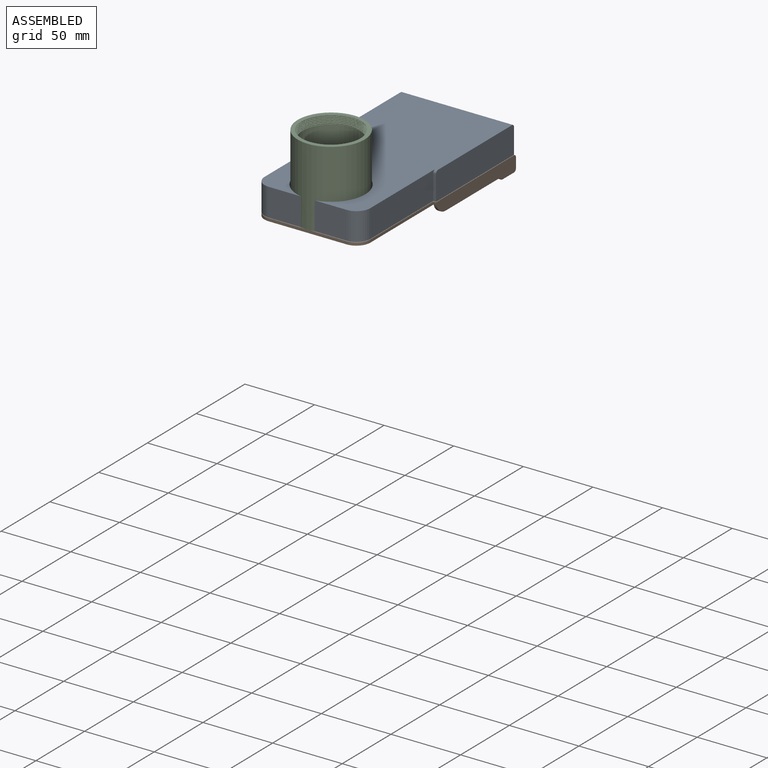
[diagram: assembled view]
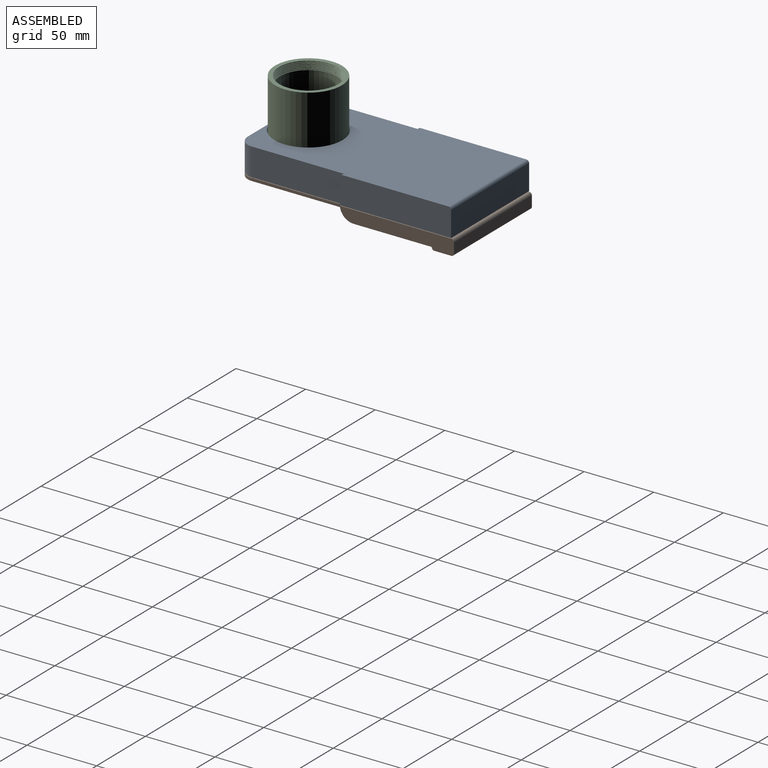
[diagram: assembled view, second angle]
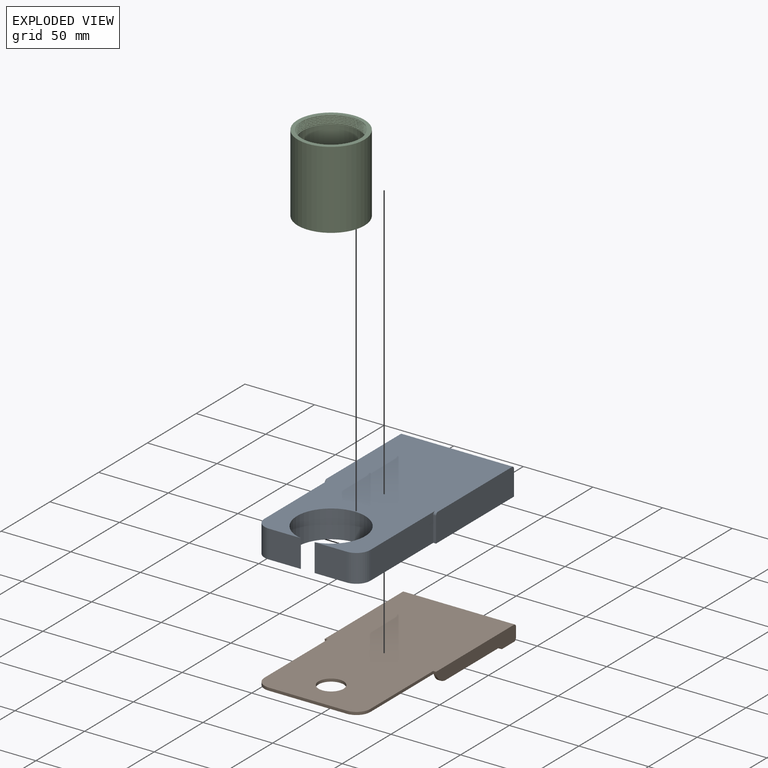
[diagram: exploded view]
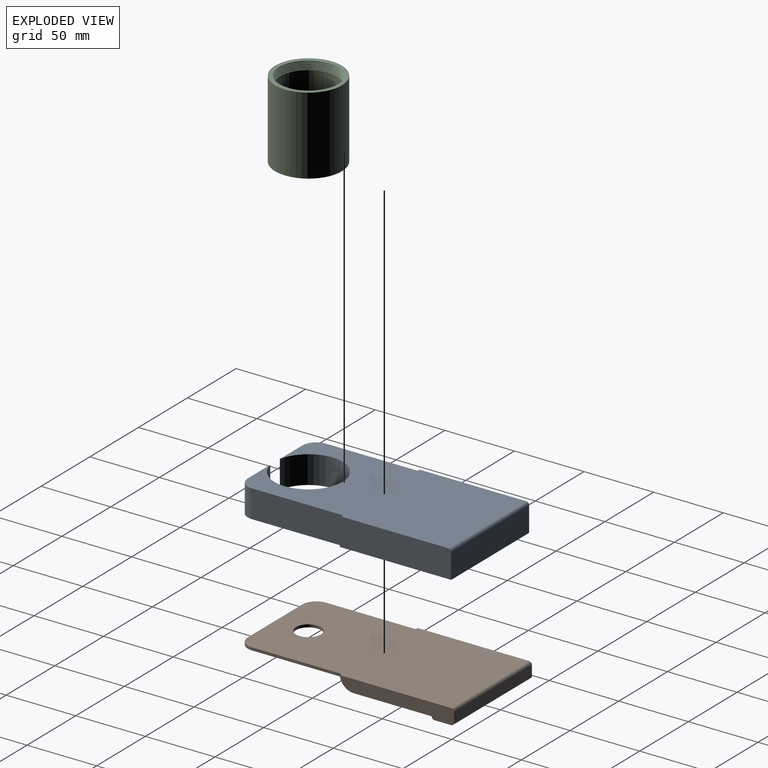
[diagram: exploded view, second angle]
ASSEMBLY  parts=3 mates=2
PART A: 17 faces, bbox 80x154.5x20 mm
  f0: plane 80x18mm, normal (0,1,0), area 1440mm2, adj f1,f11,f13,f15
  f1: plane 80x20mm, normal (1,0,0), area 1598.3mm2, adj f0,f2,f12,f13,f14,f15
  f2: plane 18x2mm, normal (0,-1,0), area 36mm2, adj f1,f3,f13,f14
  f3: plane 66.5x20mm, normal (1,0,0), area 1290.9mm2, adj f2,f4,f12,f13,f14
  f4: cylinder r=10mm len=20mm, axis (0,0,-1), area 314.2mm2, adj f3,f5,f12,f13
  f5: plane 23.08x20mm, normal (0,-1,0), area 461.5mm2, adj f4,f6,f12,f13
  f6: cylinder r=24.5mm len=49mm, axis (0,0,-1), area 2880.4mm2, adj f5,f7,f12,f13
  f7: plane 23.08x20mm, normal (0,-1,0), area 461.5mm2, adj f6,f8,f12,f13
  f8: cylinder r=10mm len=20mm, axis (0,0,-1), area 314.2mm2, adj f7,f9,f12,f13
  f9: plane 66.5x20mm, normal (-1,0,0), area 1290.9mm2, adj f8,f10,f12,f13,f16
  f10: plane 18x2mm, normal (0,-1,0), area 36mm2, adj f9,f11,f13,f16
  f11: plane 80x20mm, normal (-1,0,0), area 1598.3mm2, adj f0,f10,f12,f13,f15,f16
  f12: plane 152.5x80mm, normal (0,0,1), area 9968.6mm2, adj f1,f3,f4,f5,f6,f7,f8,f9
  f13: plane 154.5x80mm, normal (0,0,-1), area 10136.6mm2, adj f0,f1,f2,f3,f4,f5,f6,f7
  f14: cylinder r=2mm len=2mm, axis (1,0,0), area 6.3mm2, adj f1,f2,f3,f12
  f15: cylinder r=2mm len=80mm, axis (-1,0,0), area 251.3mm2, adj f0,f1,f11,f12
  f16: cylinder r=2mm len=2mm, axis (1,0,0), area 6.3mm2, adj f9,f10,f11,f12
PART B: 28 faces, bbox 80x156.5x11.1 mm
  f0: plane 14x5mm, normal (0,0,1), area 70mm2, adj f12,f13,f24,f27
  f1: plane 12x7mm, normal (0,0,-1), area 84mm2, adj f2,f14,f23,f26
  f2: cylinder r=2mm len=7mm, axis (1,0,0), area 22mm2, adj f1,f3,f14,f18,f26
  f3: plane 56.04x2mm, normal (0,0,-1), area 112.1mm2, adj f2,f11,f14,f20
  f4: plane 56.04x2mm, normal (0,0,-1), area 112.1mm2, adj f13,f16,f19,f24
  f5: plane 64.89x2mm, normal (-1,0,0), area 129.3mm2, adj f9,f10,f20,f22
  f6: plane 64.89x2mm, normal (1,0,0), area 129.3mm2, adj f9,f10,f19,f21
  f7: cylinder r=9mm len=18mm, axis (0,0,-1), area 113.1mm2, adj f9,f10
  f8: plane 56x2mm, normal (0,-1,0), area 112mm2, adj f9,f10,f21,f22
  f9: plane 154.5x76mm, normal (0,0,-1), area 11444.6mm2, adj f5,f6,f7,f8,f11,f12,f13,f21
  f10: plane 154.5x80mm, normal (0,0,1), area 11764.6mm2, adj f5,f6,f7,f8,f14,f16,f19,f20
  f11: plane 79.61x7.1mm, normal (1,0,0), area 547.2mm2, adj f3,f9,f12,f18,f20
  f12: plane 76x9.1mm, normal (0,-1,0), area 671.6mm2, adj f0,f9,f11,f13,f18,f23,f26,f27
  f13: plane 79.61x7.1mm, normal (-1,0,0), area 547.2mm2, adj f0,f4,f9,f12,f19
  f14: plane 82x11.1mm, normal (-1,0,0), area 754.5mm2, adj f1,f2,f3,f10,f15,f20,f23,f25
  f15: plane 80x7.1mm, normal (0,1,0), area 568mm2, adj f14,f16,f23,f25
  f16: plane 82x11.1mm, normal (1,0,0), area 754.5mm2, adj f4,f10,f15,f17,f19,f23,f24,f25
  f17: plane 12x7mm, normal (0,0,-1), area 84mm2, adj f16,f23,f24,f27
  f18: plane 14x5mm, normal (0,0,1), area 70mm2, adj f2,f11,f12,f26
  f19: cylinder r=10mm len=9.96mm, axis (1,0,0), area 29.6mm2, adj f4,f6,f10,f13,f16
  f20: cylinder r=10mm len=9.96mm, axis (-1,0,0), area 29.6mm2, adj f3,f5,f10,f11,f14
  f21: cylinder r=10mm len=10mm, axis (0,0,1), area 31.4mm2, adj f6,f8,f9,f10
  f22: cylinder r=10mm len=10mm, axis (0,0,-1), area 31.4mm2, adj f5,f8,f9,f10
  f23: cylinder r=2mm len=80mm, axis (-1,0,0), area 251.3mm2, adj f1,f12,f14,f15,f16,f17
  f24: cylinder r=2mm len=7mm, axis (1,0,0), area 22mm2, adj f0,f4,f16,f17,f27
  f25: cylinder r=2mm len=80mm, axis (1,0,0), area 251.3mm2, adj f10,f14,f15,f16
  f26: plane 14x2mm, normal (1,0,0), area 27.1mm2, adj f1,f2,f12,f18
  f27: plane 14x2mm, normal (-1,0,0), area 27.1mm2, adj f0,f12,f17,f24
PART C: 13 faces, bbox 48.5x49.6x56.7 mm
  f0: cylinder r=20.5mm len=48mm, axis (0,0,-1), area 6182.7mm2, adj f3,f10
  f1: cylinder r=24mm len=55.8mm, axis (0,0,-1), area 8414.4mm2, adj f2,f12
  f2: plane 48.48x48.48mm, normal (0,0,1), area 403.4mm2, adj f1,f7,f8,f9
  f3: plane 41.04x41.04mm, normal (0,0,1), area 2.6mm2, adj f0,f5
  f4: plane 1.35x0.77mm, normal (0,1,0), area 0.6mm2, adj f5,f6,f7,f8,f9
  f5: cylinder r=20.52mm len=41.04mm, axis (0,0,-1), area 96.7mm2, adj f3,f4,f6
  f6: bspline ~48.28x41.81mm, area 67.5mm2, adj f4,f5,f7
  f7: bspline ~49.16x42.57mm, area 460.2mm2, adj f2,f4,f6,f8,f9
  f8: cylinder r=21.29mm len=42.57mm, axis (0,0,-1), area 244.5mm2, adj f2,f4,f7,f9
  f9: bspline ~49.16x42.57mm, area 413.8mm2, adj f2,f4,f7,f8
  f10: plane 41x41mm, normal (0,0,1), area 1065.8mm2, adj f0,f11
  f11: cylinder r=9mm len=18mm, axis (0,0,1), area 101.8mm2, adj f10,f12
  f12: plane 48x48mm, normal (0,0,-1), area 1555.1mm2, adj f1,f11
PLACE A t=(-0.99,11.46,49.97)mm
PLACE B t=(-0.99,11.46,49.57)mm
PLACE C t=(-0.99,11.46,94.57)mm
MATE fastened C.f11 <-> B.f7  axis (0,0,-1) through (-0.99,11.46,47.77)mm
MATE cylindrical C.f11 <-> A.f6  axis (0,0,1) through (-0.99,11.46,49.57)mm
